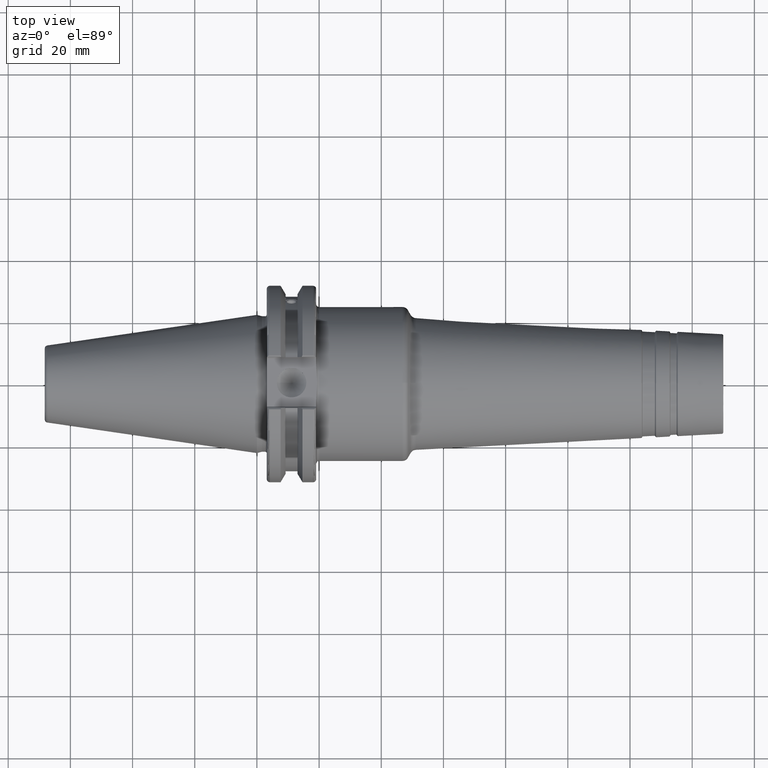
[diagram: clean part render]
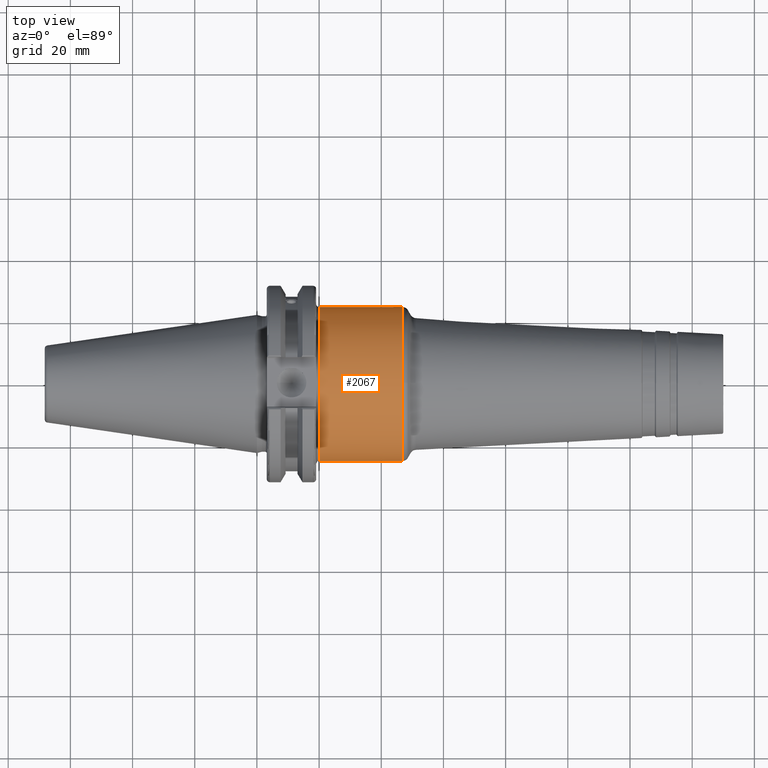
[diagram: same view with one face highlighted and labeled with its STEP entity id]
A machine part, top view. The second image highlights one B-rep face of the part: STEP entity #2067.
In plain terms, the highlighted cylindrical surface (bore or boss wall) has radius 24.75 mm, axis along (1, 0, 0).
Its self-contained STEP definition (entity closure, byte-faithful):
#122=B_SPLINE_CURVE_WITH_KNOTS('',3,(#3281,#3282,#3283,#3284,#3285,#3286,
#3287,#3288,#3289,#3290,#3291,#3292,#3293,#3294,#3295,#3296,#3297,#3298),
 .UNSPECIFIED.,.F.,.F.,(4,2,2,2,2,2,2,2,4),(-2.48845986202559,-2.17733241913027,
-1.86620497623495,-1.55521745362387,-1.24422993101279,-0.933242408401712,
-0.622254885790633,-0.311127442895316,0.),.UNSPECIFIED.);
#155=CYLINDRICAL_SURFACE('',#2201,24.75);
#186=FACE_OUTER_BOUND('',#294,.T.);
#294=EDGE_LOOP('',(#1386,#1387,#1388,#1389,#1390,#1391,#1392,#1393));
#414=LINE('',#3311,#513);
#513=VECTOR('',#2523,24.75);
#615=CIRCLE('',#2202,24.75);
#616=CIRCLE('',#2203,24.75);
#617=CIRCLE('',#2204,24.75);
#618=CIRCLE('',#2205,24.75);
#619=CIRCLE('',#2206,24.75);
#791=VERTEX_POINT('',#3279);
#792=VERTEX_POINT('',#3280);
#795=VERTEX_POINT('',#3305);
#796=VERTEX_POINT('',#3306);
#797=VERTEX_POINT('',#3308);
#798=VERTEX_POINT('',#3310);
#1035=EDGE_CURVE('',#791,#792,#122,.T.);
#1039=EDGE_CURVE('',#795,#796,#615,.T.);
#1040=EDGE_CURVE('',#797,#795,#616,.T.);
#1041=EDGE_CURVE('',#797,#798,#414,.T.);
#1042=EDGE_CURVE('',#791,#798,#617,.T.);
#1043=EDGE_CURVE('',#798,#792,#618,.T.);
#1044=EDGE_CURVE('',#796,#797,#619,.T.);
#1386=ORIENTED_EDGE('',*,*,#1039,.F.);
#1387=ORIENTED_EDGE('',*,*,#1040,.F.);
#1388=ORIENTED_EDGE('',*,*,#1041,.T.);
#1389=ORIENTED_EDGE('',*,*,#1042,.F.);
#1390=ORIENTED_EDGE('',*,*,#1035,.T.);
#1391=ORIENTED_EDGE('',*,*,#1043,.F.);
#1392=ORIENTED_EDGE('',*,*,#1041,.F.);
#1393=ORIENTED_EDGE('',*,*,#1044,.F.);
#2067=ADVANCED_FACE('',(#186),#155,.T.);
#2201=AXIS2_PLACEMENT_3D('',#3304,#2517,#2518);
#2202=AXIS2_PLACEMENT_3D('',#3307,#2519,#2520);
#2203=AXIS2_PLACEMENT_3D('',#3309,#2521,#2522);
#2204=AXIS2_PLACEMENT_3D('',#3312,#2524,#2525);
#2205=AXIS2_PLACEMENT_3D('',#3313,#2526,#2527);
#2206=AXIS2_PLACEMENT_3D('',#3314,#2528,#2529);
#2517=DIRECTION('center_axis',(1.,0.,0.));
#2518=DIRECTION('ref_axis',(0.,1.,0.));
#2519=DIRECTION('center_axis',(1.,0.,0.));
#2520=DIRECTION('ref_axis',(0.,-1.,1.83697019872103E-16));
#2521=DIRECTION('center_axis',(1.,0.,0.));
#2522=DIRECTION('ref_axis',(0.,-1.,1.83697019872103E-16));
#2523=DIRECTION('',(-1.,0.,0.));
#2524=DIRECTION('center_axis',(-1.,0.,0.));
#2525=DIRECTION('ref_axis',(0.,6.12323399573677E-17,1.));
#2526=DIRECTION('center_axis',(-1.,0.,0.));
#2527=DIRECTION('ref_axis',(0.,6.12323399573677E-17,1.));
#2528=DIRECTION('center_axis',(1.,0.,0.));
#2529=DIRECTION('ref_axis',(0.,-1.,1.83697019872103E-16));
#3279=CARTESIAN_POINT('',(20.05,-8.19,-23.3556502799644));
#3280=CARTESIAN_POINT('',(20.05,8.18999999999999,-23.3556502799644));
#3281=CARTESIAN_POINT('Ctrl Pts',(20.05,-8.19,-23.3556502799644));
#3282=CARTESIAN_POINT('Ctrl Pts',(21.0870914763177,-8.19,-23.3556502799644));
#3283=CARTESIAN_POINT('Ctrl Pts',(22.1874172494719,-7.98112852617488,-23.4319820145953));
#3284=CARTESIAN_POINT('Ctrl Pts',(24.2026226557734,-7.14301766428651,-23.7009173446597));
#3285=CARTESIAN_POINT('Ctrl Pts',(25.1182638848105,-6.51414519102515,-23.8889373554493));
#3286=CARTESIAN_POINT('Ctrl Pts',(26.563820070037,-5.06858900579863,-24.2368381566145));
#3287=CARTESIAN_POINT('Ctrl Pts',(27.1929429534371,-4.15281808103606,-24.420258379043));
#3288=CARTESIAN_POINT('Ctrl Pts',(28.0312404144778,-2.13713243178097,-24.6784841969774));
#3289=CARTESIAN_POINT('Ctrl Pts',(28.24,-1.03662507537027,-24.75));
#3290=CARTESIAN_POINT('Ctrl Pts',(28.24,1.03662507537027,-24.75));
#3291=CARTESIAN_POINT('Ctrl Pts',(28.0312404144778,2.13713243178098,-24.6784841969774));
#3292=CARTESIAN_POINT('Ctrl Pts',(27.1929429534371,4.15281808103607,-24.420258379043));
#3293=CARTESIAN_POINT('Ctrl Pts',(26.563820070037,5.06858900579863,-24.2368381566145));
#3294=CARTESIAN_POINT('Ctrl Pts',(25.1182638848105,6.51414519102515,-23.8889373554493));
#3295=CARTESIAN_POINT('Ctrl Pts',(24.2026226557734,7.14301766428652,-23.7009173446597));
#3296=CARTESIAN_POINT('Ctrl Pts',(22.1874172494719,7.98112852617489,-23.4319820145953));
#3297=CARTESIAN_POINT('Ctrl Pts',(21.0870914763177,8.19,-23.3556502799644));
#3298=CARTESIAN_POINT('Ctrl Pts',(20.05,8.19,-23.3556502799644));
#3304=CARTESIAN_POINT('Origin',(33.5119748461301,0.,0.));
#3305=CARTESIAN_POINT('',(46.8192491538809,24.75,-1.51550041394485E-15));
#3306=CARTESIAN_POINT('',(46.8192491538809,-3.0310008278897E-15,24.75));
#3307=CARTESIAN_POINT('Origin',(46.8192491538809,0.,0.));
#3308=CARTESIAN_POINT('',(46.8192491538809,-24.75,-3.0310008278897E-15));
#3309=CARTESIAN_POINT('Origin',(46.8192491538809,0.,0.));
#3310=CARTESIAN_POINT('',(20.05,-24.75,-3.0310008278897E-15));
#3311=CARTESIAN_POINT('',(33.5119748461301,-24.75,-3.0310008278897E-15));
#3312=CARTESIAN_POINT('Origin',(20.05,0.,0.));
#3313=CARTESIAN_POINT('Origin',(20.05,0.,0.));
#3314=CARTESIAN_POINT('Origin',(46.8192491538809,0.,0.));